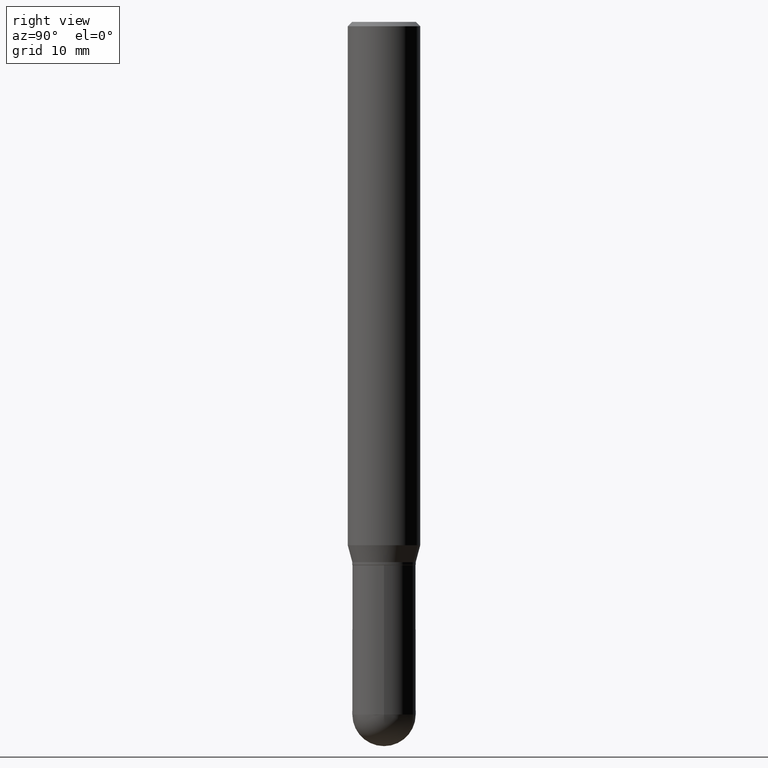
[diagram: clean part render]
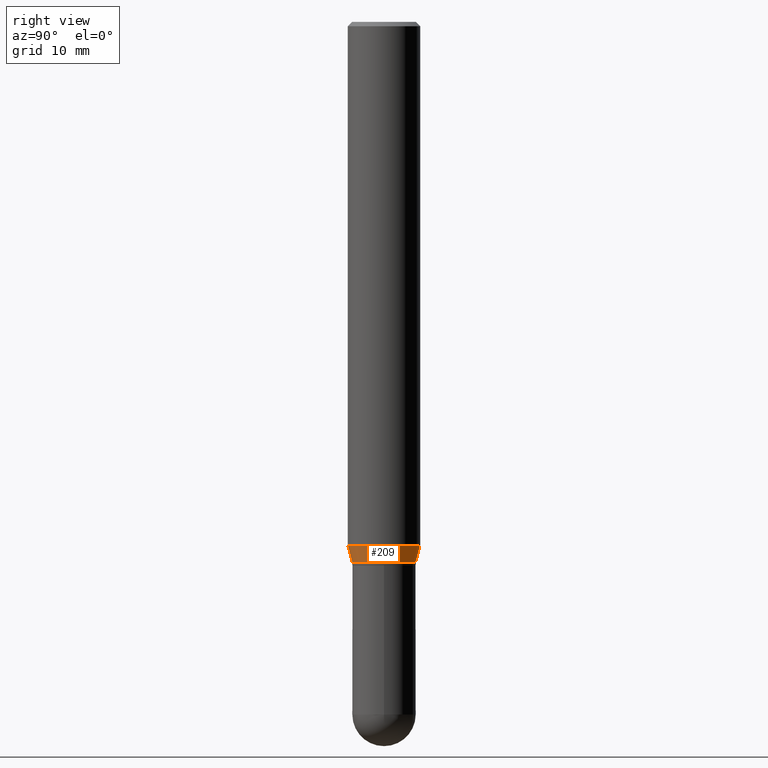
[diagram: same view with one face highlighted and labeled with its STEP entity id]
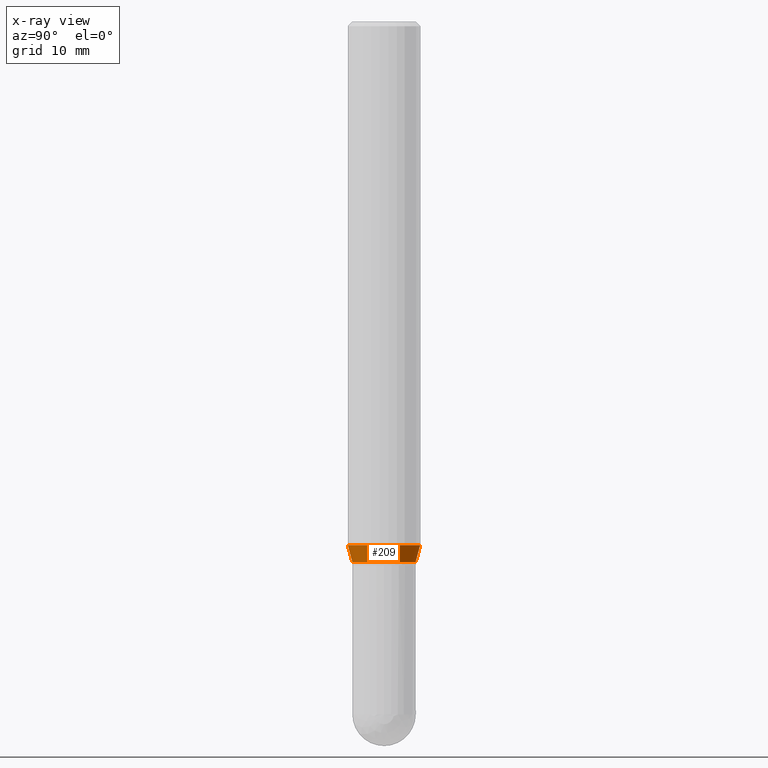
[diagram: x-ray of the same camera — body ghosted, the highlighted face saturated]
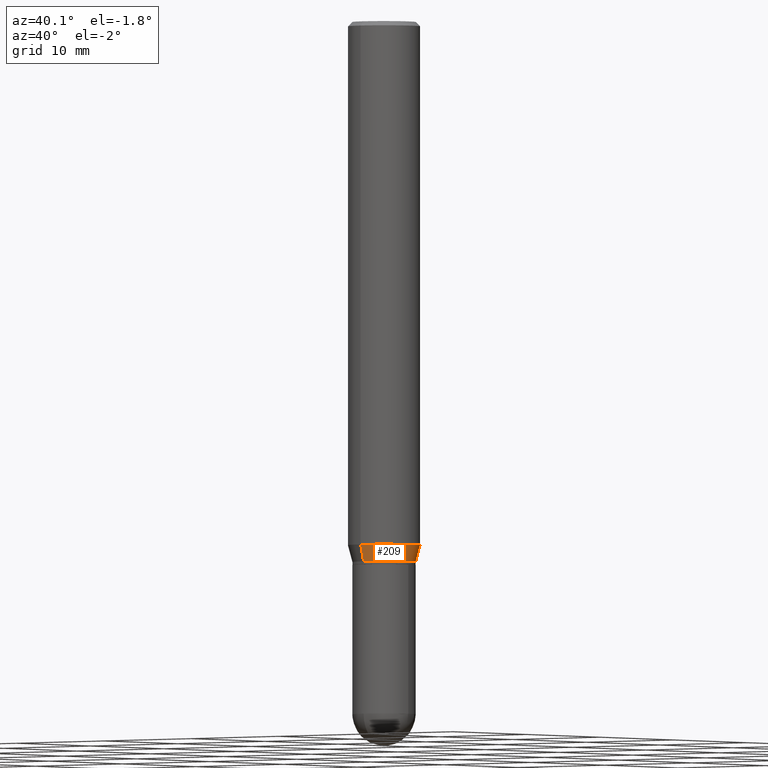
[diagram: same view with one face highlighted and labeled with its STEP entity id]
A machine part, right view. The second image highlights one B-rep face of the part: STEP entity #209.
The next image is the same camera in x-ray: the body ghosted, the highlighted face saturated — about 0% of this face is hidden behind the body in this view.
A second angle (auxiliary view) of the same face is appended — the face is thin or edge-on in the first view.
In plain terms, the highlighted conical surface has half-angle 15 deg.
Its self-contained STEP definition (entity closure, byte-faithful):
#42 = CARTESIAN_POINT ( 'NONE',  ( 8.327560863108821759E-16, 0.1093999999999934053, -1.865000000000000213 ) ) ;
#47 = LINE ( 'NONE', #511, #150 ) ;
#58 = CARTESIAN_POINT ( 'NONE',  ( 8.881784197001690141E-16, 0.1249999999999936579, -1.806780007401925792 ) ) ;
#59 = EDGE_CURVE ( 'NONE', #508, #113, #47, .T. ) ;
#60 = DIRECTION ( 'NONE',  ( -2.445484535067431049E-29, 3.491458814188467583E-15, 1.000000000000000000 ) ) ;
#77 = VERTEX_POINT ( 'NONE', #42 ) ;
#83 = AXIS2_PLACEMENT_3D ( 'NONE', #476, #483, #375 ) ;
#84 = AXIS2_PLACEMENT_3D ( 'NONE', #190, #60, #382 ) ;
#88 = CARTESIAN_POINT ( 'NONE',  ( -8.728703347107391626E-16, -0.1250000000000063283, -1.806780007401924681 ) ) ;
#101 = ORIENTED_EDGE ( 'NONE', *, *, #109, .F. ) ;
#107 = ORIENTED_EDGE ( 'NONE', *, *, #59, .F. ) ;
#109 = EDGE_CURVE ( 'NONE', #113, #321, #315, .T. ) ;
#113 = VERTEX_POINT ( 'NONE', #88 ) ;
#116 = EDGE_CURVE ( 'NONE', #508, #77, #441, .T. ) ;
#149 = EDGE_LOOP ( 'NONE', ( #364, #405, #101, #107 ) ) ;
#150 = VECTOR ( 'NONE', #250, 39.37007874015748143 ) ;
#159 = DIRECTION ( 'NONE',  ( -6.982962677686265922E-15, -1.000000000000000000, 2.497118824190370411E-15 ) ) ;
#176 = FACE_OUTER_BOUND ( 'NONE', #149, .T. ) ;
#179 = CARTESIAN_POINT ( 'NONE',  ( 7.773337529215944502E-16, 0.1093999999999934053, -1.865000000000000213 ) ) ;
#190 = CARTESIAN_POINT ( 'NONE',  ( 4.560828657900758226E-29, -6.511570688461491770E-15, -1.864999999999999991 ) ) ;
#209 = ADVANCED_FACE ( 'NONE', ( #176 ), #247, .T. ) ;
#220 = CARTESIAN_POINT ( 'NONE',  ( 4.560828657900758226E-29, -6.511570688461491770E-15, -1.864999999999999991 ) ) ;
#223 = CARTESIAN_POINT ( 'NONE',  ( -7.639361169388312262E-16, -0.1094000000000064227, -1.864999999999999547 ) ) ;
#226 = AXIS2_PLACEMENT_3D ( 'NONE', #220, #334, #159 ) ;
#240 = EDGE_CURVE ( 'NONE', #77, #321, #462, .T. ) ;
#247 = CONICAL_SURFACE ( 'NONE', #84, 0.1093999999999999140, 0.2617993877991502960 ) ;
#250 = DIRECTION ( 'NONE',  ( -1.807323732225330139E-15, -0.2588190451025181860, 0.9659258262890689783 ) ) ;
#252 = DIRECTION ( 'NONE',  ( 1.839019923739600315E-15, 0.2588190451025249583, 0.9659258262890670910 ) ) ;
#315 = CIRCLE ( 'NONE', #83, 0.1250000000000000000 ) ;
#318 = VECTOR ( 'NONE', #252, 39.37007874015748143 ) ;
#321 = VERTEX_POINT ( 'NONE', #58 ) ;
#334 = DIRECTION ( 'NONE',  ( -2.445484535067431049E-29, 3.491458814188467583E-15, 1.000000000000000000 ) ) ;
#364 = ORIENTED_EDGE ( 'NONE', *, *, #116, .T. ) ;
#375 = DIRECTION ( 'NONE',  ( -6.982962677686265922E-15, -1.000000000000000000, 4.370956789862821150E-15 ) ) ;
#382 = DIRECTION ( 'NONE',  ( -6.982962677686265922E-15, -1.000000000000000000, 2.497118824190370411E-15 ) ) ;
#405 = ORIENTED_EDGE ( 'NONE', *, *, #240, .T. ) ;
#441 = CIRCLE ( 'NONE', #226, 0.1093999999999999140 ) ;
#462 = LINE ( 'NONE', #179, #318 ) ;
#476 = CARTESIAN_POINT ( 'NONE',  ( 4.418452566370426579E-29, -6.308297982142956369E-15, -1.806780007401925348 ) ) ;
#483 = DIRECTION ( 'NONE',  ( -2.445484535067431049E-29, 3.491458814188467583E-15, 1.000000000000000000 ) ) ;
#508 = VERTEX_POINT ( 'NONE', #223 ) ;
#511 = CARTESIAN_POINT ( 'NONE',  ( -7.639361169388312262E-16, -0.1094000000000064227, -1.864999999999999547 ) ) ;